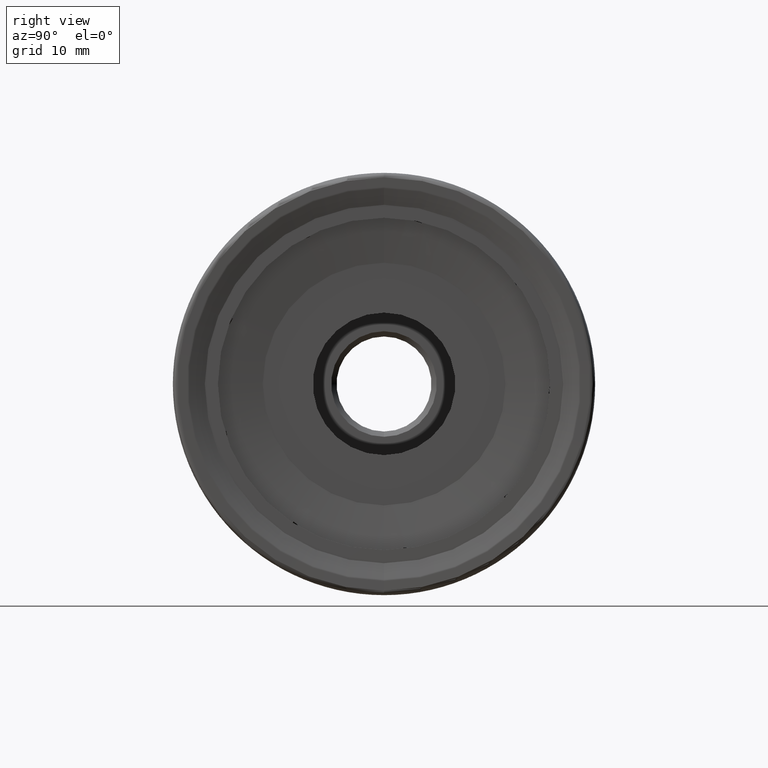
[diagram: clean part render]
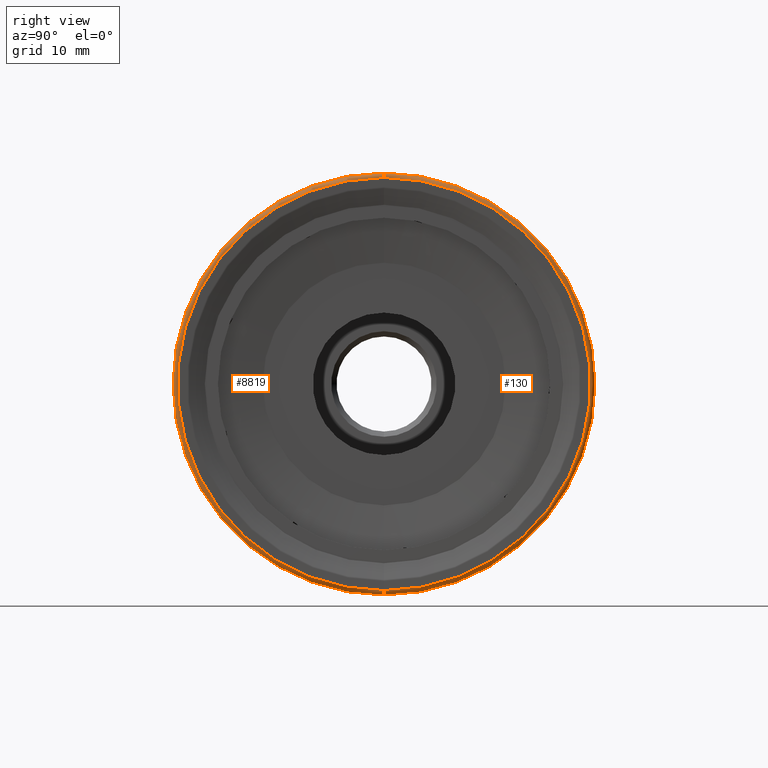
[diagram: same view with one multi-face feature highlighted, each face labeled with its STEP entity id]
A machine part, right view. The highlighted faces form ONE feature: a constant-radius fillet chain: 2 tangent blend faces with common blend radius 0.3973 mm. The faces share edges in the B-rep.
Their STEP definitions:
[1] entity #8819 (Torus):
#632 = VERTEX_POINT ( 'NONE', #5760 ) ;
#633 = VERTEX_POINT ( 'NONE', #5761 ) ;
#639 = VERTEX_POINT ( 'NONE', #5767 ) ;
#691 = VERTEX_POINT ( 'NONE', #5819 ) ;
#1109 = EDGE_LOOP ( 'NONE', ( #8106, #8121, #8122, #8119 ) ) ;
#2689 = EDGE_CURVE ( 'NONE', #632, #691, #4894, .T. ) ;
#4894 = CIRCLE ( 'NONE', #4899, 19.97726422146111200 ) ;
#4899 = AXIS2_PLACEMENT_3D ( 'NONE', #6310, #6311, #6312 ) ;
#4941 = TOROIDAL_SURFACE ( 'NONE', #4944, 19.58008278868967600, 0.3972863898014121200 ) ;
#4944 = AXIS2_PLACEMENT_3D ( 'NONE', #6448, #6445, #6450 ) ;
#5006 = CIRCLE ( 'NONE', #5007, 19.56777795543298000 ) ;
#5007 = AXIS2_PLACEMENT_3D ( 'NONE', #6676, #6677, #6678 ) ;
#5066 = CIRCLE ( 'NONE', #5075, 0.3972863898014135100 ) ;
#5068 = CIRCLE ( 'NONE', #5071, 0.3972863898014135100 ) ;
#5071 = AXIS2_PLACEMENT_3D ( 'NONE', #6893, #6894, #6895 ) ;
#5075 = AXIS2_PLACEMENT_3D ( 'NONE', #6899, #6900, #6901 ) ;
#5760 = CARTESIAN_POINT ( 'NONE',  ( 0.06184514802469107100, 2.446509268453330600E-015, 19.97726422146112300 ) ) ;
#5761 = CARTESIAN_POINT ( 'NONE',  ( 0.4498094004054178400, 2.421435466204021200E-015, 19.56777795543298000 ) ) ;
#5767 = CARTESIAN_POINT ( 'NONE',  ( 0.4498094004054178400, 0.0000000000000000000, -19.56777795543298000 ) ) ;
#5819 = CARTESIAN_POINT ( 'NONE',  ( 0.06184514802469107100, 0.0000000000000000000, -19.97726422146112300 ) ) ;
#6310 = CARTESIAN_POINT ( 'NONE',  ( 0.06184514802469107100, 0.0000000000000000000, 0.0000000000000000000 ) ) ;
#6311 = DIRECTION ( 'NONE',  ( 1.000000000000000000, -0.0000000000000000000, -0.0000000000000000000 ) ) ;
#6312 = DIRECTION ( 'NONE',  ( 0.0000000000000000000, 0.0000000000000000000, -1.000000000000000000 ) ) ;
#6443 = FACE_OUTER_BOUND ( 'NONE', #1109, .T. ) ;
#6445 = DIRECTION ( 'NONE',  ( 1.000000000000000000, -0.0000000000000000000, -0.0000000000000000000 ) ) ;
#6448 = CARTESIAN_POINT ( 'NONE',  ( 0.05271361019861670000, 0.0000000000000000000, 0.0000000000000000000 ) ) ;
#6450 = DIRECTION ( 'NONE',  ( 0.0000000000000000000, 0.0000000000000000000, -1.000000000000000000 ) ) ;
#6676 = CARTESIAN_POINT ( 'NONE',  ( 0.4498094004054178400, 0.0000000000000000000, 0.0000000000000000000 ) ) ;
#6677 = DIRECTION ( 'NONE',  ( 1.000000000000000000, -0.0000000000000000000, -0.0000000000000000000 ) ) ;
#6678 = DIRECTION ( 'NONE',  ( 0.0000000000000000000, 0.0000000000000000000, -1.000000000000000000 ) ) ;
#6893 = CARTESIAN_POINT ( 'NONE',  ( 0.05271361019861670000, 0.0000000000000000000, -19.58008278868967600 ) ) ;
#6894 = DIRECTION ( 'NONE',  ( -0.0000000000000000000, -1.000000000000000000, -0.0000000000000000000 ) ) ;
#6895 = DIRECTION ( 'NONE',  ( 0.0000000000000000000, 0.0000000000000000000, -1.000000000000000000 ) ) ;
#6899 = CARTESIAN_POINT ( 'NONE',  ( 0.05271361019861670000, 2.397868571420899300E-015, 19.58008278868967600 ) ) ;
#6900 = DIRECTION ( 'NONE',  ( 0.0000000000000000000, 1.000000000000000000, -1.224646799147353200E-016 ) ) ;
#6901 = DIRECTION ( 'NONE',  ( 0.0000000000000000000, 1.224646799147351700E-016, 1.000000000000000000 ) ) ;
#8106 = ORIENTED_EDGE ( 'NONE', *, *, #8938, .F. ) ;
#8119 = ORIENTED_EDGE ( 'NONE', *, *, #8881, .F. ) ;
#8121 = ORIENTED_EDGE ( 'NONE', *, *, #2689, .T. ) ;
#8122 = ORIENTED_EDGE ( 'NONE', *, *, #8936, .T. ) ;
#8819 = ADVANCED_FACE ( 'NONE', ( #6443 ), #4941, .T. ) ;
#8881 = EDGE_CURVE ( 'NONE', #633, #639, #5006, .T. ) ;
#8936 = EDGE_CURVE ( 'NONE', #691, #639, #5068, .T. ) ;
#8938 = EDGE_CURVE ( 'NONE', #632, #633, #5066, .T. ) ;
[2] entity #130 (Torus):
#130 = ADVANCED_FACE ( 'NONE', ( #3190 ), #8375, .T. ) ;
#632 = VERTEX_POINT ( 'NONE', #5760 ) ;
#633 = VERTEX_POINT ( 'NONE', #5761 ) ;
#639 = VERTEX_POINT ( 'NONE', #5767 ) ;
#691 = VERTEX_POINT ( 'NONE', #5819 ) ;
#859 = EDGE_LOOP ( 'NONE', ( #1162, #1135, #1132, #1127 ) ) ;
#1127 = ORIENTED_EDGE ( 'NONE', *, *, #8936, .F. ) ;
#1132 = ORIENTED_EDGE ( 'NONE', *, *, #8937, .F. ) ;
#1135 = ORIENTED_EDGE ( 'NONE', *, *, #8938, .T. ) ;
#1162 = ORIENTED_EDGE ( 'NONE', *, *, #8939, .T. ) ;
#3190 = FACE_OUTER_BOUND ( 'NONE', #859, .T. ) ;
#3192 = DIRECTION ( 'NONE',  ( 1.000000000000000000, -0.0000000000000000000, -0.0000000000000000000 ) ) ;
#3195 = CARTESIAN_POINT ( 'NONE',  ( 0.05271361019861670000, 0.0000000000000000000, 0.0000000000000000000 ) ) ;
#3197 = DIRECTION ( 'NONE',  ( 0.0000000000000000000, 0.0000000000000000000, -1.000000000000000000 ) ) ;
#5066 = CIRCLE ( 'NONE', #5075, 0.3972863898014135100 ) ;
#5068 = CIRCLE ( 'NONE', #5071, 0.3972863898014135100 ) ;
#5070 = CIRCLE ( 'NONE', #5073, 19.56777795543298000 ) ;
#5071 = AXIS2_PLACEMENT_3D ( 'NONE', #6893, #6894, #6895 ) ;
#5072 = CIRCLE ( 'NONE', #5077, 19.97726422146111200 ) ;
#5073 = AXIS2_PLACEMENT_3D ( 'NONE', #6896, #6897, #6898 ) ;
#5075 = AXIS2_PLACEMENT_3D ( 'NONE', #6899, #6900, #6901 ) ;
#5077 = AXIS2_PLACEMENT_3D ( 'NONE', #6904, #6905, #6906 ) ;
#5760 = CARTESIAN_POINT ( 'NONE',  ( 0.06184514802469107100, 2.446509268453330600E-015, 19.97726422146112300 ) ) ;
#5761 = CARTESIAN_POINT ( 'NONE',  ( 0.4498094004054178400, 2.421435466204021200E-015, 19.56777795543298000 ) ) ;
#5767 = CARTESIAN_POINT ( 'NONE',  ( 0.4498094004054178400, 0.0000000000000000000, -19.56777795543298000 ) ) ;
#5819 = CARTESIAN_POINT ( 'NONE',  ( 0.06184514802469107100, 0.0000000000000000000, -19.97726422146112300 ) ) ;
#6893 = CARTESIAN_POINT ( 'NONE',  ( 0.05271361019861670000, 0.0000000000000000000, -19.58008278868967600 ) ) ;
#6894 = DIRECTION ( 'NONE',  ( -0.0000000000000000000, -1.000000000000000000, -0.0000000000000000000 ) ) ;
#6895 = DIRECTION ( 'NONE',  ( 0.0000000000000000000, 0.0000000000000000000, -1.000000000000000000 ) ) ;
#6896 = CARTESIAN_POINT ( 'NONE',  ( 0.4498094004054178400, 0.0000000000000000000, 0.0000000000000000000 ) ) ;
#6897 = DIRECTION ( 'NONE',  ( 1.000000000000000000, -0.0000000000000000000, -0.0000000000000000000 ) ) ;
#6898 = DIRECTION ( 'NONE',  ( 0.0000000000000000000, 0.0000000000000000000, -1.000000000000000000 ) ) ;
#6899 = CARTESIAN_POINT ( 'NONE',  ( 0.05271361019861670000, 2.397868571420899300E-015, 19.58008278868967600 ) ) ;
#6900 = DIRECTION ( 'NONE',  ( 0.0000000000000000000, 1.000000000000000000, -1.224646799147353200E-016 ) ) ;
#6901 = DIRECTION ( 'NONE',  ( 0.0000000000000000000, 1.224646799147351700E-016, 1.000000000000000000 ) ) ;
#6904 = CARTESIAN_POINT ( 'NONE',  ( 0.06184514802469107100, 0.0000000000000000000, 0.0000000000000000000 ) ) ;
#6905 = DIRECTION ( 'NONE',  ( 1.000000000000000000, -0.0000000000000000000, -0.0000000000000000000 ) ) ;
#6906 = DIRECTION ( 'NONE',  ( 0.0000000000000000000, 0.0000000000000000000, -1.000000000000000000 ) ) ;
#8375 = TOROIDAL_SURFACE ( 'NONE', #8437, 19.58008278868967600, 0.3972863898014121200 ) ;
#8437 = AXIS2_PLACEMENT_3D ( 'NONE', #3195, #3192, #3197 ) ;
#8936 = EDGE_CURVE ( 'NONE', #691, #639, #5068, .T. ) ;
#8937 = EDGE_CURVE ( 'NONE', #639, #633, #5070, .T. ) ;
#8938 = EDGE_CURVE ( 'NONE', #632, #633, #5066, .T. ) ;
#8939 = EDGE_CURVE ( 'NONE', #691, #632, #5072, .T. ) ;